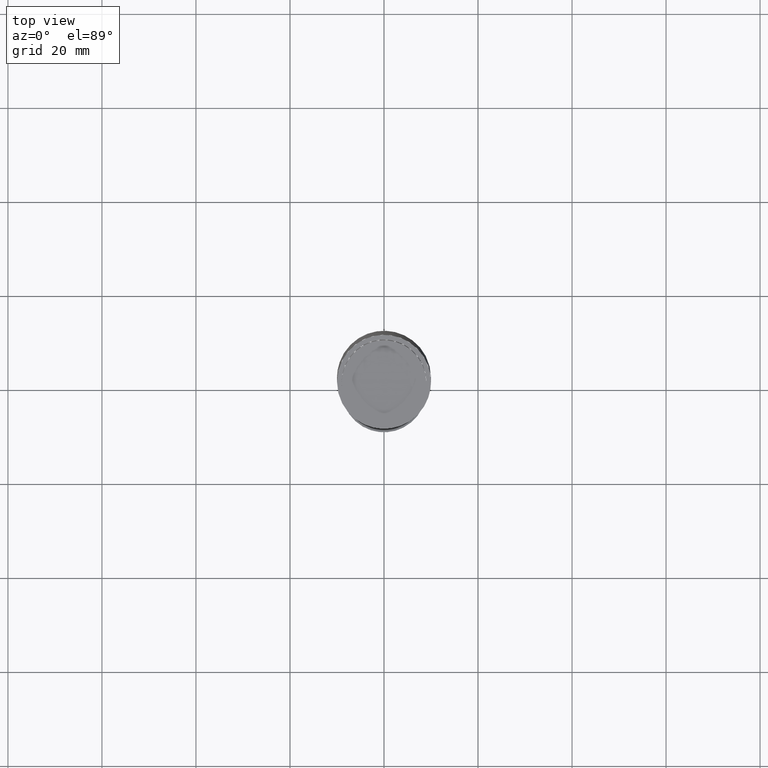
[diagram: clean part render]
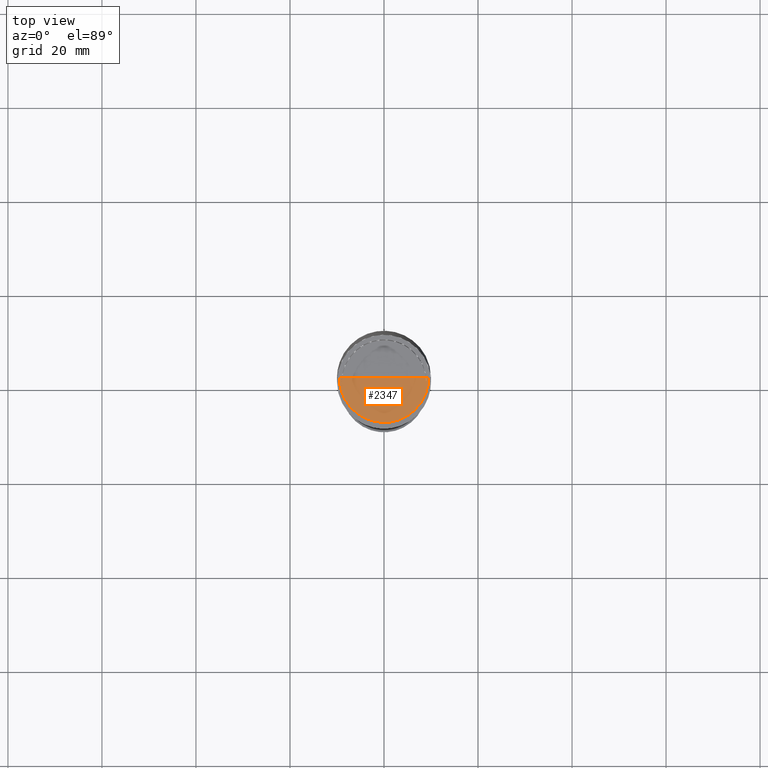
[diagram: same view with one face highlighted and labeled with its STEP entity id]
A machine part, top view. The second image highlights one B-rep face of the part: STEP entity #2347.
In plain terms, the highlighted face is a freeform B-spline surface patch.
Its self-contained STEP definition (entity closure, byte-faithful):
#1950=CARTESIAN_POINT('',(9.5,0.0,50.0));
#1954=CARTESIAN_POINT('',(-9.5,0.0,50.0));
#1955=CARTESIAN_POINT('',(0.0,0.0,50.0));
#1968=CARTESIAN_POINT('',(-9.5,-9.5,50.0));
#1969=CARTESIAN_POINT('',(0.0,-9.5,50.0));
#1970=CARTESIAN_POINT('',(9.5,-9.5,50.0));
#2332=(
BOUNDED_SURFACE()
B_SPLINE_SURFACE(1,2,(
(#1954,#1968,#1969,#1970,#1950),
(#1955,#1955,#1955,#1955,#1955)
), .UNSPECIFIED.,.F.,.F.,.F.)
B_SPLINE_SURFACE_WITH_KNOTS((2,2),(3,2,3),(
0.0,1.0),(
0.0,0.5,1.0), .UNSPECIFIED.)
GEOMETRIC_REPRESENTATION_ITEM()
RATIONAL_B_SPLINE_SURFACE(((1.0,0.707106781187,1.0,0.707106781187,1.0),
(1.0,0.707106781187,1.0,0.707106781187,1.0)
))
REPRESENTATION_ITEM('')
SURFACE()
);
#2333=(
BOUNDED_CURVE()
B_SPLINE_CURVE(2,(#1950,#1970,#1969,#1968,#1954),.UNSPECIFIED.,.F.,.F.)
B_SPLINE_CURVE_WITH_KNOTS((3,2,3),
(0.0,0.5,1.0),.UNSPECIFIED.)
CURVE()
GEOMETRIC_REPRESENTATION_ITEM()
RATIONAL_B_SPLINE_CURVE((1.0,0.707106781187,1.0,0.707106781187,1.0))
REPRESENTATION_ITEM('')
);
#2334=(
BOUNDED_CURVE()
B_SPLINE_CURVE(1,(#1954,#1955),.UNSPECIFIED.,.F.,.F.)
B_SPLINE_CURVE_WITH_KNOTS((2,2),
(0.0,1.0),.UNSPECIFIED.)
CURVE()
GEOMETRIC_REPRESENTATION_ITEM()
RATIONAL_B_SPLINE_CURVE((1.0,1.0))
REPRESENTATION_ITEM('')
);
#2335=(
BOUNDED_CURVE()
B_SPLINE_CURVE(1,(#1955,#1950),.UNSPECIFIED.,.F.,.F.)
B_SPLINE_CURVE_WITH_KNOTS((2,2),
(0.0,1.0),.UNSPECIFIED.)
CURVE()
GEOMETRIC_REPRESENTATION_ITEM()
RATIONAL_B_SPLINE_CURVE((1.0,1.0))
REPRESENTATION_ITEM('')
);
#2336=VERTEX_POINT('',#1950);
#2337=VERTEX_POINT('',#1954);
#2338=VERTEX_POINT('',#1955);
#2339=EDGE_CURVE('',#2336,#2337,#2333,.T.);
#2340=EDGE_CURVE('',#2337,#2338,#2334,.T.);
#2341=EDGE_CURVE('',#2338,#2336,#2335,.T.);
#2342=ORIENTED_EDGE('',*,*,#2339,.T.);
#2343=ORIENTED_EDGE('',*,*,#2340,.T.);
#2344=ORIENTED_EDGE('',*,*,#2341,.T.);
#2345=EDGE_LOOP('',(#2342,#2343,#2344));
#2346=FACE_OUTER_BOUND('',#2345,.T.);
#2347=ADVANCED_FACE('',(#2346),#2332,.T.);